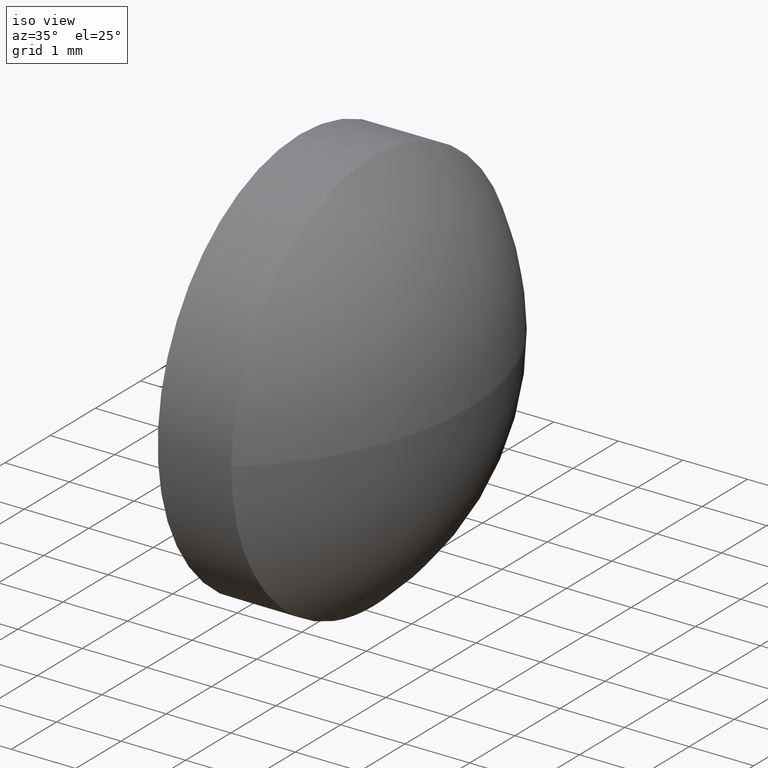
[diagram: clean part render]
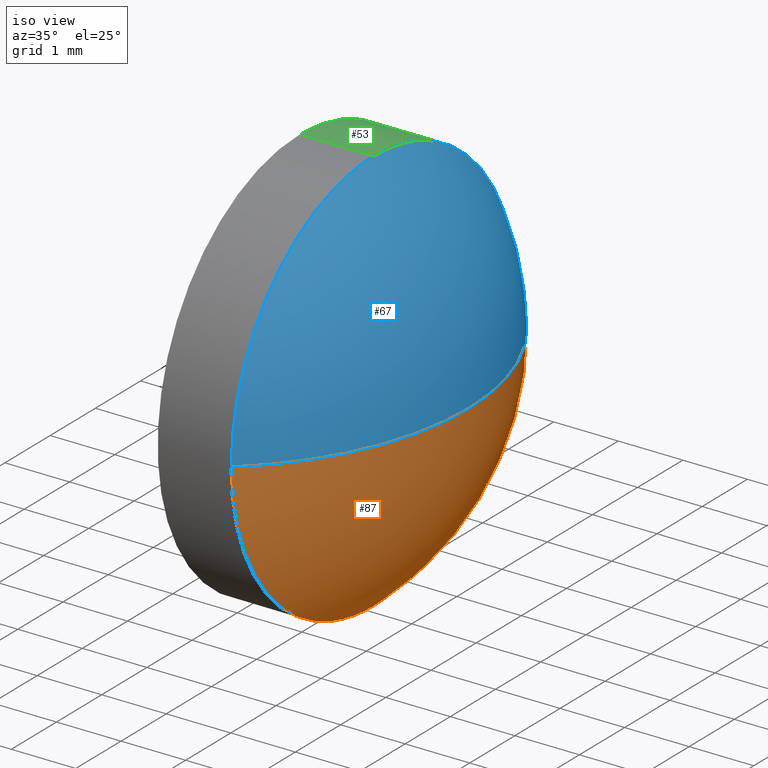
[diagram: same view with three faces highlighted in distinct colors, each labeled with its STEP entity id]
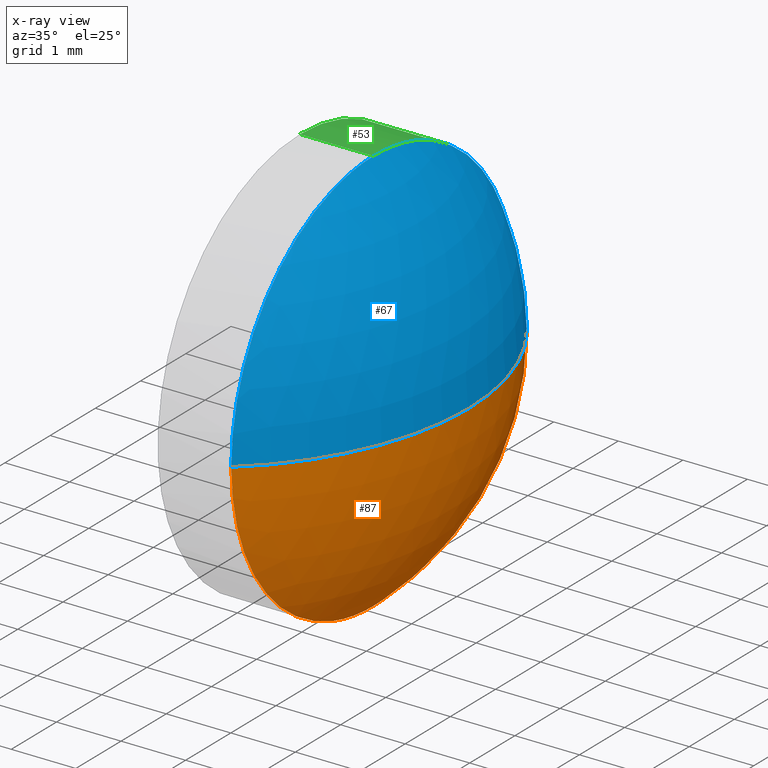
[diagram: x-ray of the same camera — body ghosted, the three highlighted faces saturated]
A machine part, iso view with three faces highlighted in distinct colors.
The next image is the same camera in x-ray (body ghosted, the three faces saturated) — at least one of them is partly hidden behind the body in this view.
Their STEP definitions:

[orange] entity #87 — the highlighted spherical surface has radius 4.1281 mm.
#2 = VERTEX_POINT ( 'NONE', #57 ) ;
#6 = EDGE_CURVE ( 'NONE', #120, #11, #113, .T. ) ;
#8 = ORIENTED_EDGE ( 'NONE', *, *, #6, .T. ) ;
#9 = AXIS2_PLACEMENT_3D ( 'NONE', #94, #117, #145 ) ;
#11 = VERTEX_POINT ( 'NONE', #88 ) ;
#12 = VERTEX_POINT ( 'NONE', #44 ) ;
#15 = EDGE_LOOP ( 'NONE', ( #38, #8, #122, #82 ) ) ;
#31 = DIRECTION ( 'NONE',  ( 1.000000000000000000, 0.0000000000000000000, 0.0000000000000000000 ) ) ;
#38 = ORIENTED_EDGE ( 'NONE', *, *, #101, .F. ) ;
#44 = CARTESIAN_POINT ( 'NONE',  ( 431.4696963031011600, 112.9186759989569300, -3.150000000000013700 ) ) ;
#49 = AXIS2_PLACEMENT_3D ( 'NONE', #73, #179, #100 ) ;
#50 = CARTESIAN_POINT ( 'NONE',  ( 432.9296963031012000, 112.9186759989569100, 0.0000000000000000000 ) ) ;
#54 = AXIS2_PLACEMENT_3D ( 'NONE', #92, #162, #31 ) ;
#57 = CARTESIAN_POINT ( 'NONE',  ( 431.4696963031011600, 116.0686759989569300, 0.0000000000000000000 ) ) ;
#66 = AXIS2_PLACEMENT_3D ( 'NONE', #163, #75, #93 ) ;
#71 = CARTESIAN_POINT ( 'NONE',  ( 428.8015798647450700, 112.9186759989569100, 0.0000000000000000000 ) ) ;
#73 = CARTESIAN_POINT ( 'NONE',  ( 428.8015798647450700, 112.9186759989569100, 0.0000000000000000000 ) ) ;
#74 = SPHERICAL_SURFACE ( 'NONE', #49, 4.128116438356152600 ) ;
#75 = DIRECTION ( 'NONE',  ( -1.000000000000000000, -0.0000000000000000000, -0.0000000000000000000 ) ) ;
#82 = ORIENTED_EDGE ( 'NONE', *, *, #182, .F. ) ;
#87 = ADVANCED_FACE ( 'NONE', ( #112 ), #74, .T. ) ;
#88 = CARTESIAN_POINT ( 'NONE',  ( 431.4696963031011600, 109.7686759989568900, -3.857637417314172500E-016 ) ) ;
#92 = CARTESIAN_POINT ( 'NONE',  ( 428.8015798647450700, 112.9186759989569100, 0.0000000000000000000 ) ) ;
#93 = DIRECTION ( 'NONE',  ( 0.0000000000000000000, 0.0000000000000000000, 1.000000000000000000 ) ) ;
#94 = CARTESIAN_POINT ( 'NONE',  ( 431.4696963031011600, 112.9186759989569300, 0.0000000000000000000 ) ) ;
#96 = CIRCLE ( 'NONE', #66, 3.150000000000013700 ) ;
#100 = DIRECTION ( 'NONE',  ( 0.0000000000000000000, 1.000000000000000000, 0.0000000000000000000 ) ) ;
#101 = EDGE_CURVE ( 'NONE', #120, #2, #137, .T. ) ;
#112 = FACE_OUTER_BOUND ( 'NONE', #15, .T. ) ;
#113 = CIRCLE ( 'NONE', #186, 4.128116438356157900 ) ;
#117 = DIRECTION ( 'NONE',  ( -1.000000000000000000, -0.0000000000000000000, -0.0000000000000000000 ) ) ;
#120 = VERTEX_POINT ( 'NONE', #50 ) ;
#122 = ORIENTED_EDGE ( 'NONE', *, *, #138, .F. ) ;
#137 = CIRCLE ( 'NONE', #54, 4.128116438356144600 ) ;
#138 = EDGE_CURVE ( 'NONE', #12, #11, #146, .T. ) ;
#145 = DIRECTION ( 'NONE',  ( 0.0000000000000000000, 0.0000000000000000000, 1.000000000000000000 ) ) ;
#146 = CIRCLE ( 'NONE', #9, 3.150000000000013700 ) ;
#162 = DIRECTION ( 'NONE',  ( -0.0000000000000000000, 0.0000000000000000000, 1.000000000000000000 ) ) ;
#163 = CARTESIAN_POINT ( 'NONE',  ( 431.4696963031011600, 112.9186759989569300, 0.0000000000000000000 ) ) ;
#175 = DIRECTION ( 'NONE',  ( 0.0000000000000000000, 1.000000000000000000, 1.224646799147351500E-016 ) ) ;
#179 = DIRECTION ( 'NONE',  ( -0.0000000000000000000, 0.0000000000000000000, -1.000000000000000000 ) ) ;
#182 = EDGE_CURVE ( 'NONE', #2, #12, #96, .T. ) ;
#185 = DIRECTION ( 'NONE',  ( 0.0000000000000000000, 1.224646799147353200E-016, -1.000000000000000000 ) ) ;
#186 = AXIS2_PLACEMENT_3D ( 'NONE', #71, #185, #175 ) ;

[blue] entity #67 — the highlighted spherical surface has radius 4.1281 mm.
#2 = VERTEX_POINT ( 'NONE', #57 ) ;
#6 = EDGE_CURVE ( 'NONE', #120, #11, #113, .T. ) ;
#11 = VERTEX_POINT ( 'NONE', #88 ) ;
#31 = DIRECTION ( 'NONE',  ( 1.000000000000000000, 0.0000000000000000000, 0.0000000000000000000 ) ) ;
#45 = DIRECTION ( 'NONE',  ( -1.000000000000000000, -0.0000000000000000000, -0.0000000000000000000 ) ) ;
#46 = CARTESIAN_POINT ( 'NONE',  ( 431.4696963031011600, 112.9186759989569300, 0.0000000000000000000 ) ) ;
#48 = VERTEX_POINT ( 'NONE', #128 ) ;
#50 = CARTESIAN_POINT ( 'NONE',  ( 432.9296963031012000, 112.9186759989569100, 0.0000000000000000000 ) ) ;
#54 = AXIS2_PLACEMENT_3D ( 'NONE', #92, #162, #31 ) ;
#57 = CARTESIAN_POINT ( 'NONE',  ( 431.4696963031011600, 116.0686759989569300, 0.0000000000000000000 ) ) ;
#63 = ORIENTED_EDGE ( 'NONE', *, *, #6, .F. ) ;
#67 = ADVANCED_FACE ( 'NONE', ( #111 ), #169, .T. ) ;
#69 = CIRCLE ( 'NONE', #131, 3.150000000000013700 ) ;
#71 = CARTESIAN_POINT ( 'NONE',  ( 428.8015798647450700, 112.9186759989569100, 0.0000000000000000000 ) ) ;
#72 = DIRECTION ( 'NONE',  ( 0.0000000000000000000, 1.000000000000000000, 0.0000000000000000000 ) ) ;
#76 = DIRECTION ( 'NONE',  ( 0.0000000000000000000, 0.0000000000000000000, 1.000000000000000000 ) ) ;
#86 = ORIENTED_EDGE ( 'NONE', *, *, #184, .F. ) ;
#88 = CARTESIAN_POINT ( 'NONE',  ( 431.4696963031011600, 109.7686759989568900, -3.857637417314172500E-016 ) ) ;
#92 = CARTESIAN_POINT ( 'NONE',  ( 428.8015798647450700, 112.9186759989569100, 0.0000000000000000000 ) ) ;
#95 = AXIS2_PLACEMENT_3D ( 'NONE', #130, #133, #147 ) ;
#101 = EDGE_CURVE ( 'NONE', #120, #2, #137, .T. ) ;
#103 = CIRCLE ( 'NONE', #95, 3.150000000000013700 ) ;
#111 = FACE_OUTER_BOUND ( 'NONE', #159, .T. ) ;
#113 = CIRCLE ( 'NONE', #186, 4.128116438356157900 ) ;
#115 = CARTESIAN_POINT ( 'NONE',  ( 428.8015798647450700, 112.9186759989569100, 0.0000000000000000000 ) ) ;
#120 = VERTEX_POINT ( 'NONE', #50 ) ;
#124 = AXIS2_PLACEMENT_3D ( 'NONE', #115, #141, #72 ) ;
#128 = CARTESIAN_POINT ( 'NONE',  ( 431.4696963031011600, 112.9186759989569300, 3.150000000000013700 ) ) ;
#130 = CARTESIAN_POINT ( 'NONE',  ( 431.4696963031011600, 112.9186759989569300, 0.0000000000000000000 ) ) ;
#131 = AXIS2_PLACEMENT_3D ( 'NONE', #46, #45, #76 ) ;
#133 = DIRECTION ( 'NONE',  ( -1.000000000000000000, -0.0000000000000000000, -0.0000000000000000000 ) ) ;
#137 = CIRCLE ( 'NONE', #54, 4.128116438356144600 ) ;
#141 = DIRECTION ( 'NONE',  ( -0.0000000000000000000, 0.0000000000000000000, -1.000000000000000000 ) ) ;
#147 = DIRECTION ( 'NONE',  ( 0.0000000000000000000, 0.0000000000000000000, 1.000000000000000000 ) ) ;
#151 = ORIENTED_EDGE ( 'NONE', *, *, #101, .T. ) ;
#159 = EDGE_LOOP ( 'NONE', ( #63, #151, #161, #86 ) ) ;
#161 = ORIENTED_EDGE ( 'NONE', *, *, #166, .F. ) ;
#162 = DIRECTION ( 'NONE',  ( -0.0000000000000000000, 0.0000000000000000000, 1.000000000000000000 ) ) ;
#166 = EDGE_CURVE ( 'NONE', #48, #2, #103, .T. ) ;
#169 = SPHERICAL_SURFACE ( 'NONE', #124, 4.128116438356152600 ) ;
#175 = DIRECTION ( 'NONE',  ( 0.0000000000000000000, 1.000000000000000000, 1.224646799147351500E-016 ) ) ;
#184 = EDGE_CURVE ( 'NONE', #11, #48, #69, .T. ) ;
#185 = DIRECTION ( 'NONE',  ( 0.0000000000000000000, 1.224646799147353200E-016, -1.000000000000000000 ) ) ;
#186 = AXIS2_PLACEMENT_3D ( 'NONE', #71, #185, #175 ) ;

[green] entity #53 — the highlighted cylindrical surface (partial cylindrical patch) has radius 3.15 mm, axis along (-1, -0, -0).
#2 = VERTEX_POINT ( 'NONE', #57 ) ;
#7 = CARTESIAN_POINT ( 'NONE',  ( 430.3296963031011700, 112.9186759989569300, -3.150000000000013700 ) ) ;
#12 = VERTEX_POINT ( 'NONE', #44 ) ;
#14 = VECTOR ( 'NONE', #18, 1000.000000000000000 ) ;
#16 = CARTESIAN_POINT ( 'NONE',  ( 430.3296963031011700, 112.9186759989569300, 0.0000000000000000000 ) ) ;
#18 = DIRECTION ( 'NONE',  ( -1.000000000000000000, -0.0000000000000000000, -0.0000000000000000000 ) ) ;
#22 = ORIENTED_EDGE ( 'NONE', *, *, #182, .T. ) ;
#24 = ORIENTED_EDGE ( 'NONE', *, *, #51, .T. ) ;
#25 = AXIS2_PLACEMENT_3D ( 'NONE', #157, #160, #90 ) ;
#26 = ORIENTED_EDGE ( 'NONE', *, *, #166, .T. ) ;
#29 = DIRECTION ( 'NONE',  ( -1.000000000000000000, -0.0000000000000000000, -0.0000000000000000000 ) ) ;
#36 = LINE ( 'NONE', #116, #99 ) ;
#44 = CARTESIAN_POINT ( 'NONE',  ( 431.4696963031011600, 112.9186759989569300, -3.150000000000013700 ) ) ;
#48 = VERTEX_POINT ( 'NONE', #128 ) ;
#51 = EDGE_CURVE ( 'NONE', #12, #153, #36, .T. ) ;
#53 = ADVANCED_FACE ( 'NONE', ( #129 ), #62, .T. ) ;
#57 = CARTESIAN_POINT ( 'NONE',  ( 431.4696963031011600, 116.0686759989569300, 0.0000000000000000000 ) ) ;
#59 = VERTEX_POINT ( 'NONE', #172 ) ;
#62 = CYLINDRICAL_SURFACE ( 'NONE', #25, 3.150000000000013700 ) ;
#64 = EDGE_CURVE ( 'NONE', #59, #153, #107, .T. ) ;
#66 = AXIS2_PLACEMENT_3D ( 'NONE', #163, #75, #93 ) ;
#75 = DIRECTION ( 'NONE',  ( -1.000000000000000000, -0.0000000000000000000, -0.0000000000000000000 ) ) ;
#80 = EDGE_CURVE ( 'NONE', #48, #59, #167, .T. ) ;
#89 = ORIENTED_EDGE ( 'NONE', *, *, #80, .F. ) ;
#90 = DIRECTION ( 'NONE',  ( 0.0000000000000000000, 0.0000000000000000000, 1.000000000000000000 ) ) ;
#93 = DIRECTION ( 'NONE',  ( 0.0000000000000000000, 0.0000000000000000000, 1.000000000000000000 ) ) ;
#95 = AXIS2_PLACEMENT_3D ( 'NONE', #130, #133, #147 ) ;
#96 = CIRCLE ( 'NONE', #66, 3.150000000000013700 ) ;
#99 = VECTOR ( 'NONE', #171, 1000.000000000000000 ) ;
#103 = CIRCLE ( 'NONE', #95, 3.150000000000013700 ) ;
#107 = CIRCLE ( 'NONE', #108, 3.150000000000013700 ) ;
#108 = AXIS2_PLACEMENT_3D ( 'NONE', #16, #29, #143 ) ;
#109 = ORIENTED_EDGE ( 'NONE', *, *, #64, .F. ) ;
#116 = CARTESIAN_POINT ( 'NONE',  ( 429.4680681335166800, 112.9186759989569300, -3.150000000000013700 ) ) ;
#128 = CARTESIAN_POINT ( 'NONE',  ( 431.4696963031011600, 112.9186759989569300, 3.150000000000013700 ) ) ;
#129 = FACE_OUTER_BOUND ( 'NONE', #180, .T. ) ;
#130 = CARTESIAN_POINT ( 'NONE',  ( 431.4696963031011600, 112.9186759989569300, 0.0000000000000000000 ) ) ;
#133 = DIRECTION ( 'NONE',  ( -1.000000000000000000, -0.0000000000000000000, -0.0000000000000000000 ) ) ;
#143 = DIRECTION ( 'NONE',  ( 0.0000000000000000000, 0.0000000000000000000, 1.000000000000000000 ) ) ;
#147 = DIRECTION ( 'NONE',  ( 0.0000000000000000000, 0.0000000000000000000, 1.000000000000000000 ) ) ;
#153 = VERTEX_POINT ( 'NONE', #7 ) ;
#157 = CARTESIAN_POINT ( 'NONE',  ( 429.4680681335166800, 112.9186759989569300, 0.0000000000000000000 ) ) ;
#160 = DIRECTION ( 'NONE',  ( -1.000000000000000000, -0.0000000000000000000, -0.0000000000000000000 ) ) ;
#163 = CARTESIAN_POINT ( 'NONE',  ( 431.4696963031011600, 112.9186759989569300, 0.0000000000000000000 ) ) ;
#166 = EDGE_CURVE ( 'NONE', #48, #2, #103, .T. ) ;
#167 = LINE ( 'NONE', #174, #14 ) ;
#171 = DIRECTION ( 'NONE',  ( -1.000000000000000000, -0.0000000000000000000, -0.0000000000000000000 ) ) ;
#172 = CARTESIAN_POINT ( 'NONE',  ( 430.3296963031011700, 112.9186759989569300, 3.150000000000013700 ) ) ;
#174 = CARTESIAN_POINT ( 'NONE',  ( 429.4680681335166800, 112.9186759989569300, 3.150000000000013700 ) ) ;
#180 = EDGE_LOOP ( 'NONE', ( #22, #24, #109, #89, #26 ) ) ;
#182 = EDGE_CURVE ( 'NONE', #2, #12, #96, .T. ) ;